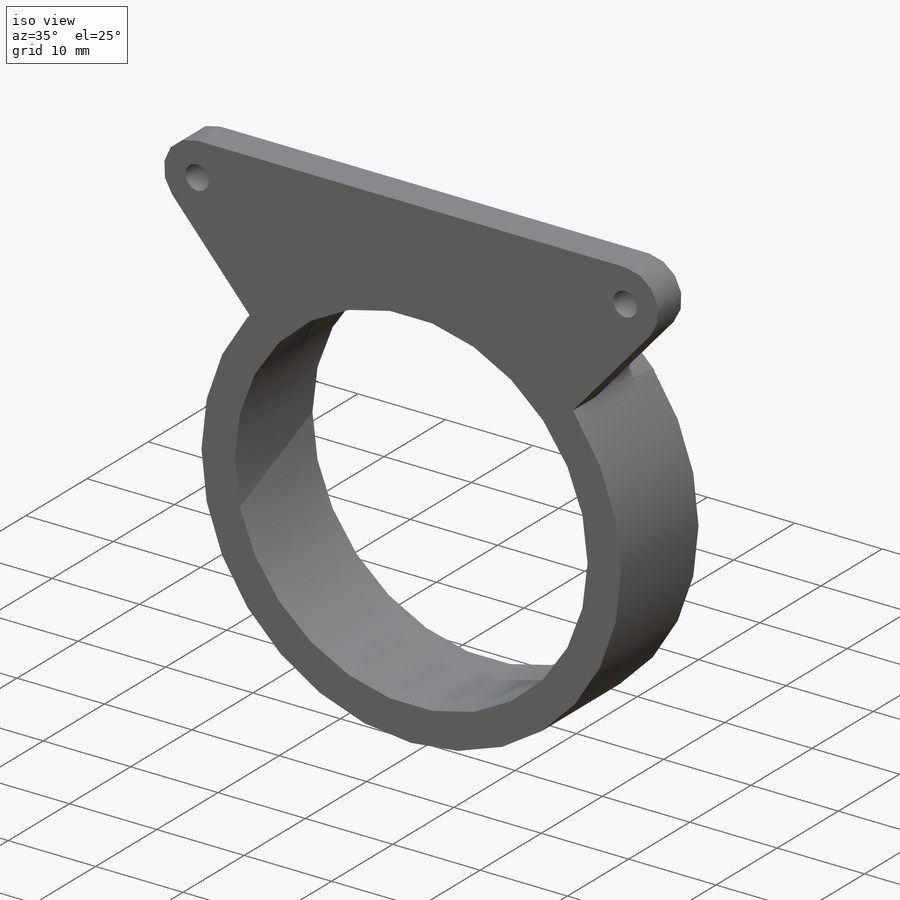
[diagram: iso view]
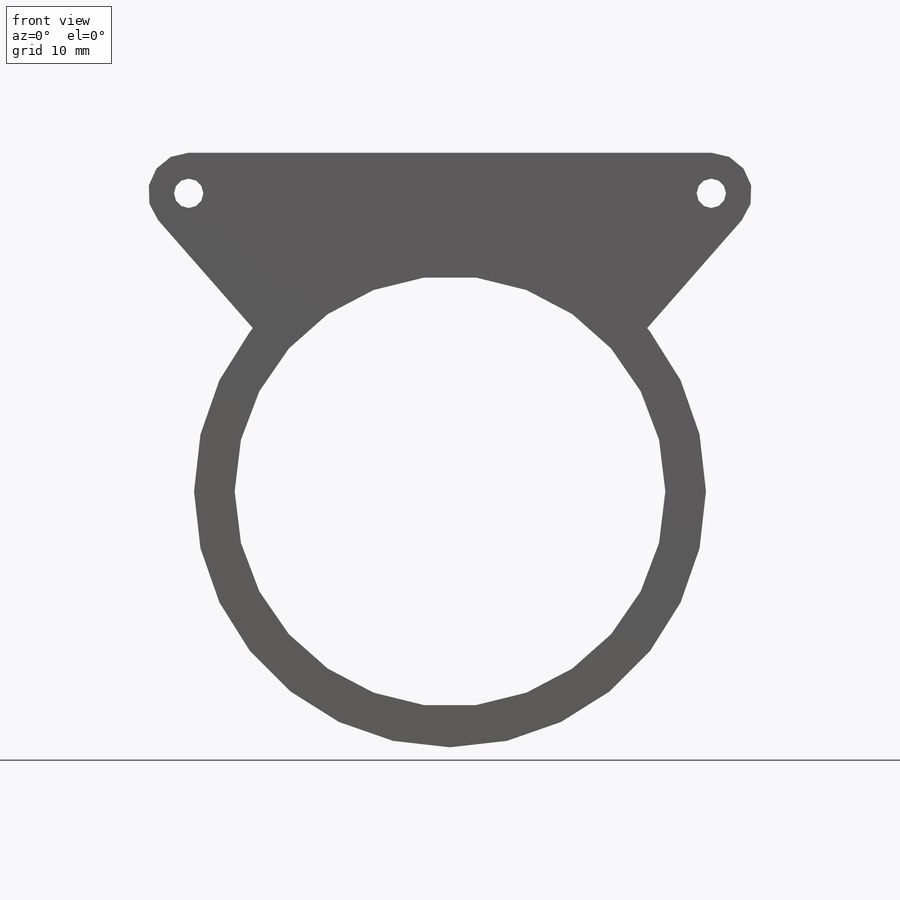
[diagram: front view]
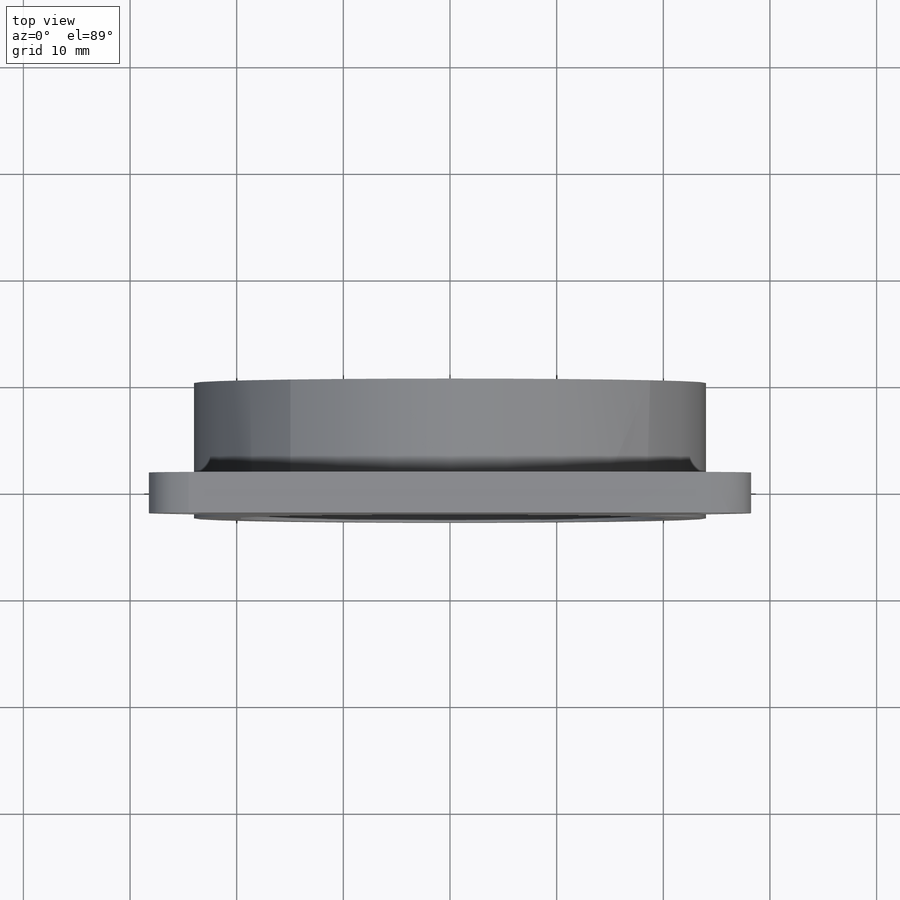
[diagram: top view]
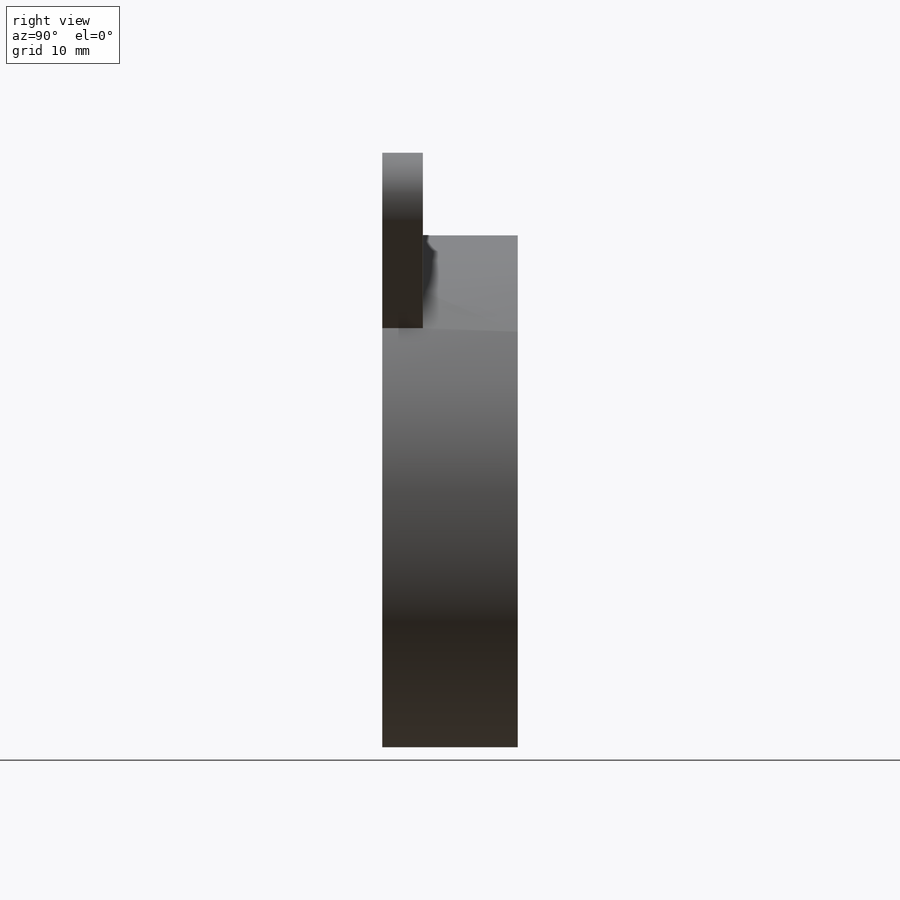
[diagram: right view]
SOLIDWORKS PART (.sldprt)
format: sldprt  version: not decoded by parser v0  size: 209,920 bytes
history: native  units: mm
features: sketch x3, extrude x3, material x1 (+13 scaffold rows collapsed)
feature tree (20):
  scaffold x13  (default folders/planes/origin — collapsed)
  material  "Material <not specified>"
  sketch  "Sketch1"  dims[D1=39.878mm D2=0.25mm D3=3.81mm]
  extrude  "Boss-Extrude1"  Depth=12.7mm
  sketch  "Sketch2"  dims[c1.D2=3.81mm c1.D4=~48.999388mm c1.D5=~54.627568mm c1.D6=~54.382472mm c1.D7=~49.000001mm c2.D5=21.59mm c2.D3=44.45mm c3.D5=44.45mm c3.D6=~22.948971mm c3.D3=31.75mm c3.D1=3.81mm c4.D3=0.0mm]
  extrude  "Boss-Extrude2"  Depth=3.81mm
  sketch  "Sketch3"
  extrude  "Boss-Extrude3"  Depth=15.24mm
decode coverage: 5 of 6 modeling features carry decoded parameters
note: ~ marks probable driven/reference dimensions
note: suppression state not decoded; provenance and decode notes live in map.json
